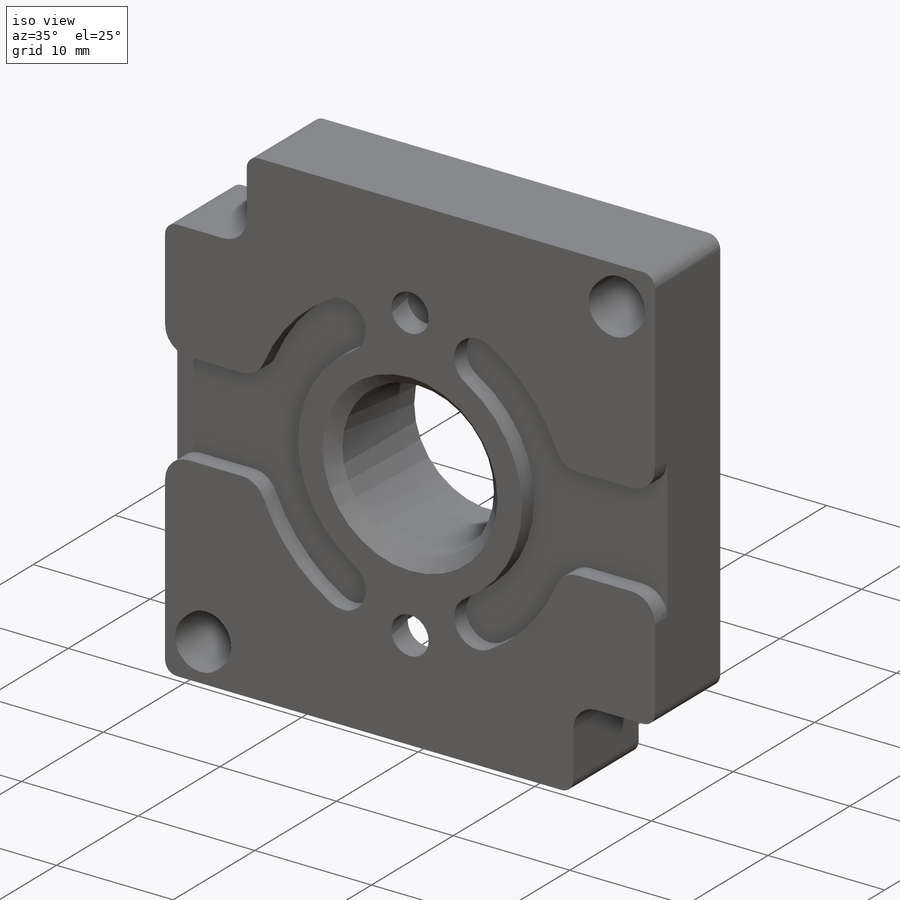
[diagram: iso view]
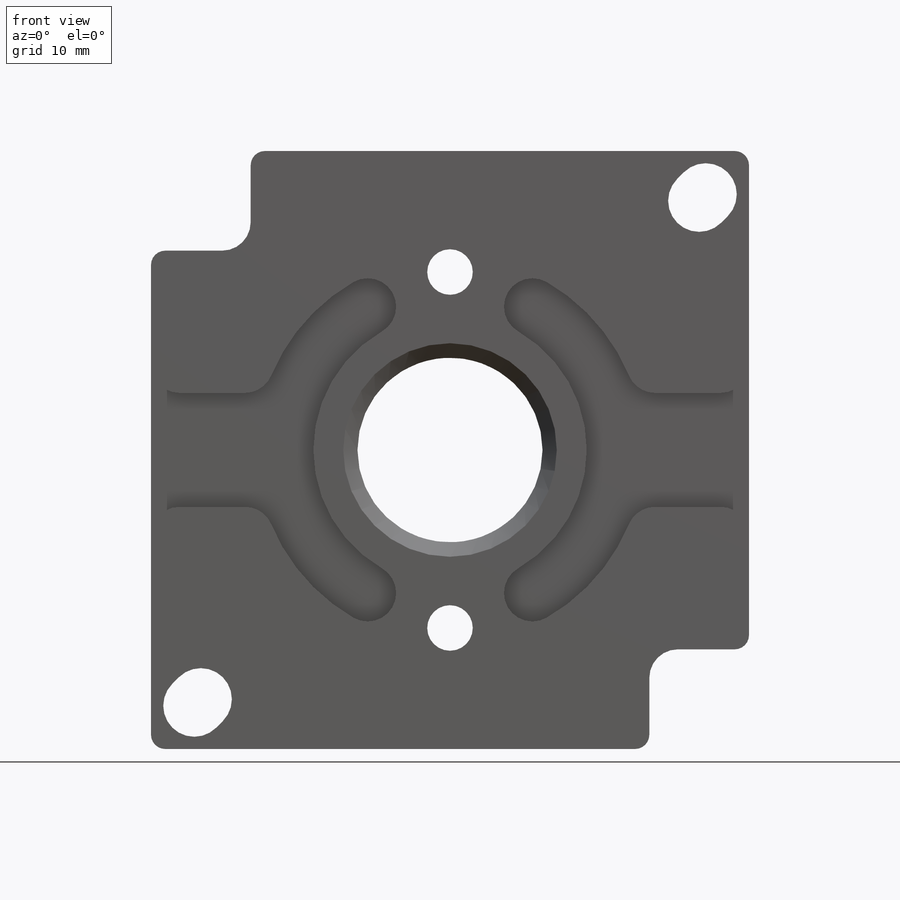
[diagram: front view]
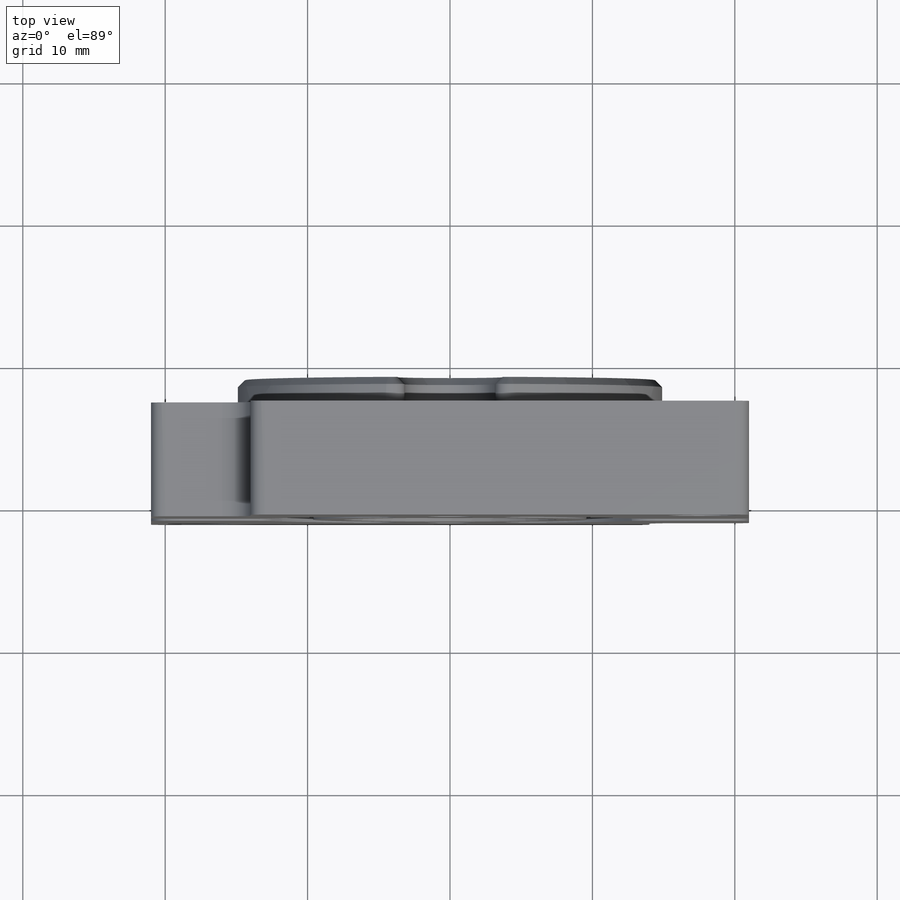
[diagram: top view]
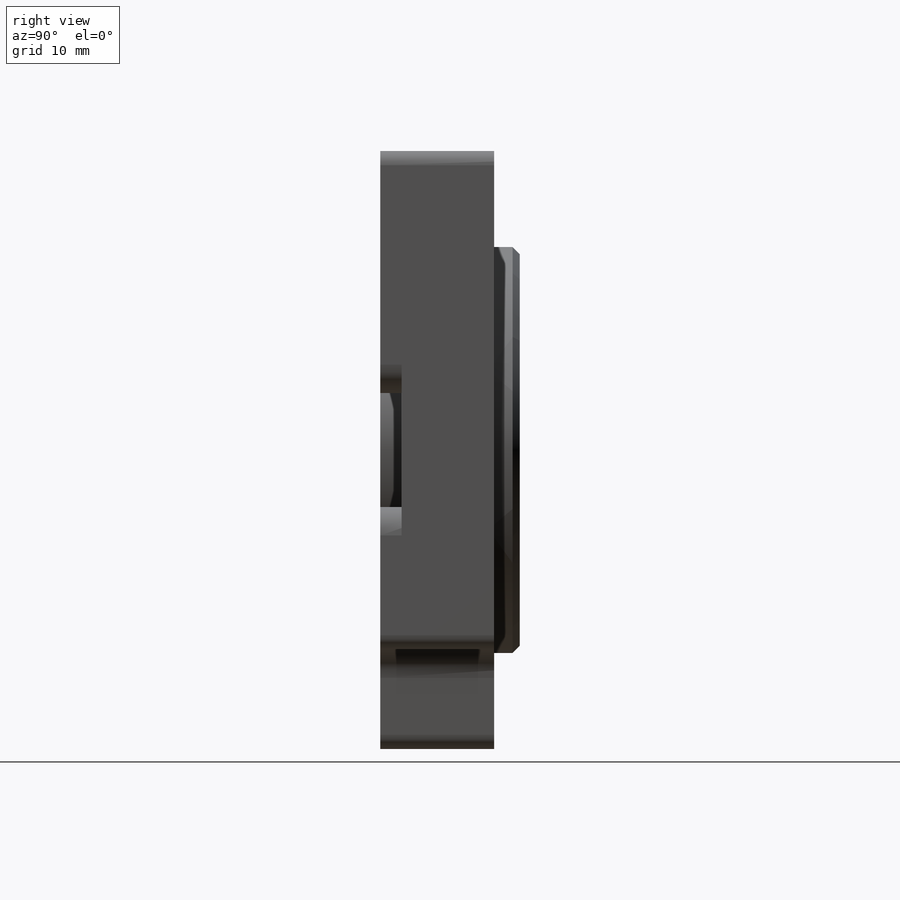
[diagram: right view]
SOLIDWORKS PART (.sldprt)
format: sldprt  version: not decoded by parser v0  size: 685,056 bytes
history: native  units: mm
features: sketch x22, cut_extrude x16, fillet x3, extrude x2, hole x2, chamfer x2, material x1, plane x1 (+13 scaffold rows collapsed)
feature tree (62):
  scaffold x13  (default folders/planes/origin — collapsed)
  material  "Material <not specified>"
  plane  "Plane1"
  sketch  "Sketch1"
  extrude  "Boss-Extrude1"  Depth=8mm
  sketch  "Sketch2"
  extrude  "Boss-Extrude2"  Depth=1.8mm
  sketch  "Sketch3"
  cut_extrude  "Cut-Extrude1"  Depth=6mm
  sketch  "Sketch4"
  cut_extrude  "Cut-Extrude2"  Depth=6mm
  sketch  "Sketch5"
  cut_extrude  "Cut-Extrude3"  Depth=6mm
  sketch  "Sketch6"
  cut_extrude  "Cut-Extrude4"  Depth=6mm
  sketch  "Sketch7"
  cut_extrude  "Cut-Extrude5"  Depth=1.5mm
  sketch  "Sketch8"
  cut_extrude  "Cut-Extrude6"  Depth=1.5mm
  sketch  "Sketch9"
  cut_extrude  "Cut-Extrude7"  Depth=8mm
  sketch  "Sketch10"
  cut_extrude  "Cut-Extrude8"  Depth=8mm
  sketch  "Sketch11"
  cut_extrude  "Cut-Extrude9"  Depth=8mm
  sketch  "Sketch12"
  cut_extrude  "Cut-Extrude10"  Depth=8mm
  sketch  "Sketch13"
  cut_extrude  "Cut-Extrude11"  Depth=7.8mm
  sketch  "Sketch14"
  cut_extrude  "Cut-Extrude12"  Depth=7.8mm
  sketch  "Sketch15"
  cut_extrude  "Cut-Extrude13"  Depth=7.8mm
  sketch  "Sketch16"
  cut_extrude  "Cut-Extrude14"  Depth=7.8mm
  sketch  "Sketch17"
  cut_extrude  "Cut-Extrude15"  Depth=7.8mm
  sketch  "Sketch18"
  cut_extrude  "Cut-Extrude16"  Depth=7.8mm
  hole  "Ø3.2 (3.2) Diameter Hole1"  Diameter=3.2mm Depth=2mm
  sketch  "Sketch20"
  sketch  "Sketch19"  dims[hole-wizard template sketch: 61 standard entries collapsed; hole parameters above]
  hole  "Ø13.0 (13) Diameter Hole1"  Diameter=13mm Depth=9.8mm
  sketch  "Sketch22"
  sketch  "Sketch21"  dims[hole-wizard template sketch: 59 standard entries collapsed; hole parameters kept: c18.Thru Hole Dia.=13.0mm c18.Thru Hole Depth=9.8mm]
  chamfer  "Chamfer1"  Distance=1mm Angle=45deg
  chamfer  "Chamfer2"  Distance=0.5mm Angle=45deg
  fillet  "Fillet1"  Radius=1mm
  fillet  "Fillet2"  Radius=2mm
  fillet  "Fillet3"  Radius=4mm
decode coverage: 27 of 47 modeling features carry decoded parameters
note: ~ marks probable driven/reference dimensions
note: suppression state not decoded; provenance and decode notes live in map.json
